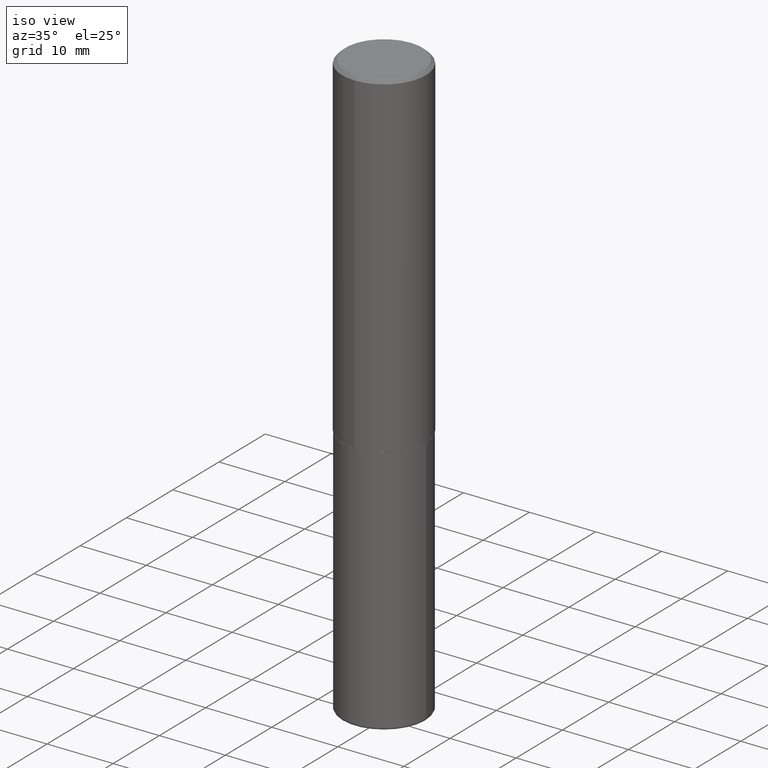
[diagram: clean part render]
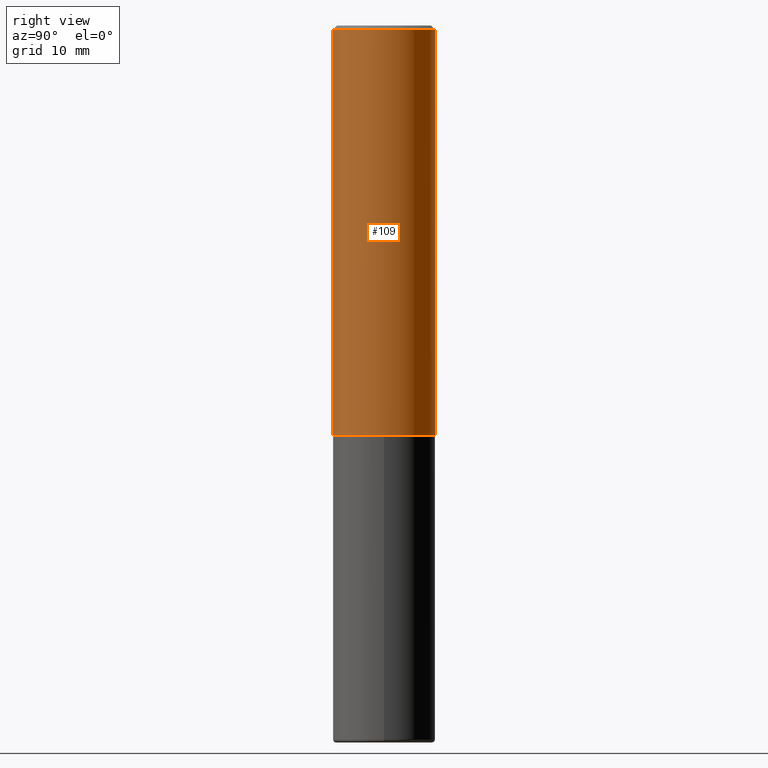
[diagram: tour spotlight — one face highlighted and labeled with its STEP entity id]
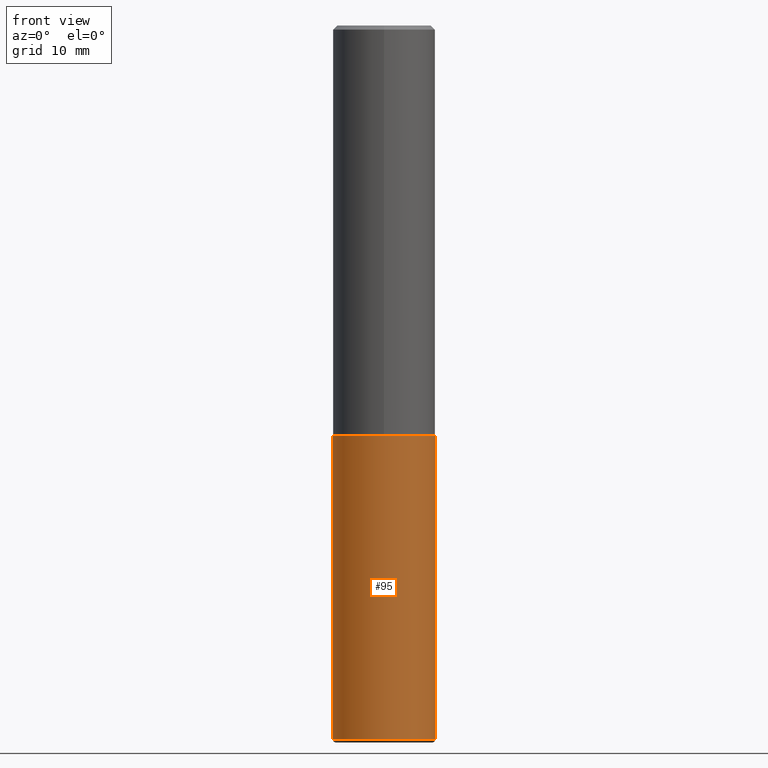
[diagram: tour spotlight — one face highlighted and labeled with its STEP entity id]
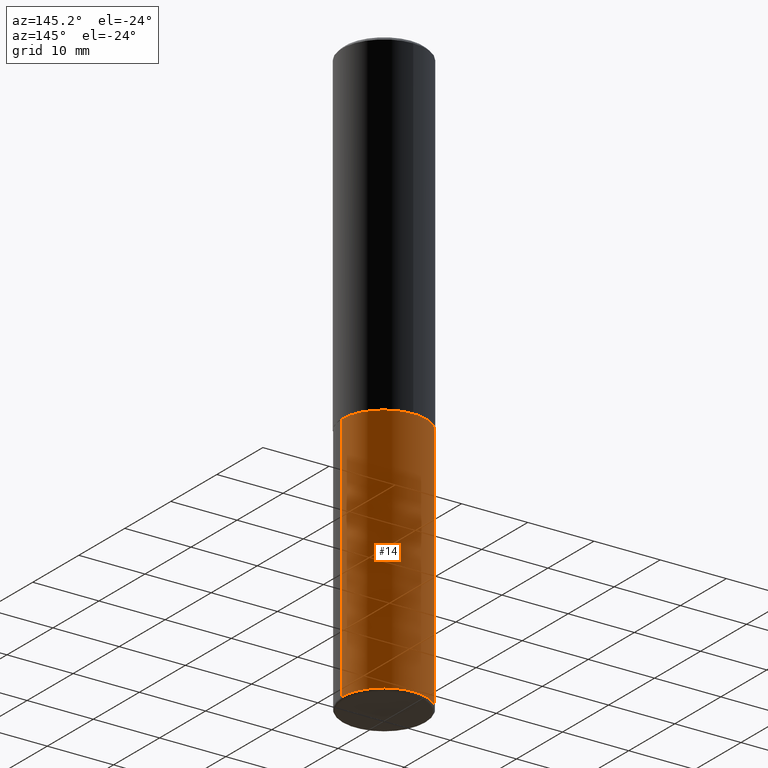
[diagram: tour spotlight — one face highlighted and labeled with its STEP entity id]
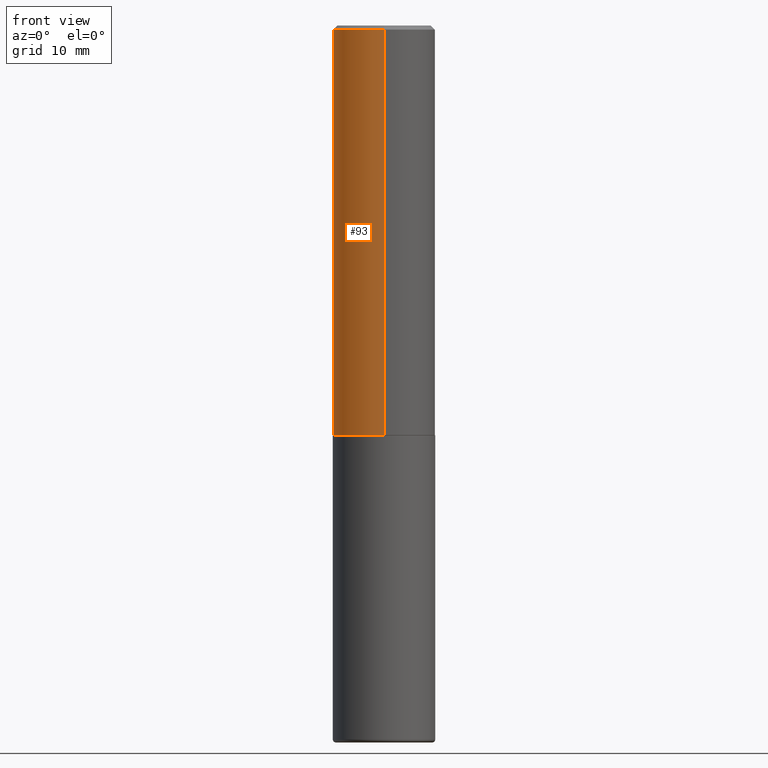
[diagram: tour spotlight — one face highlighted and labeled with its STEP entity id]
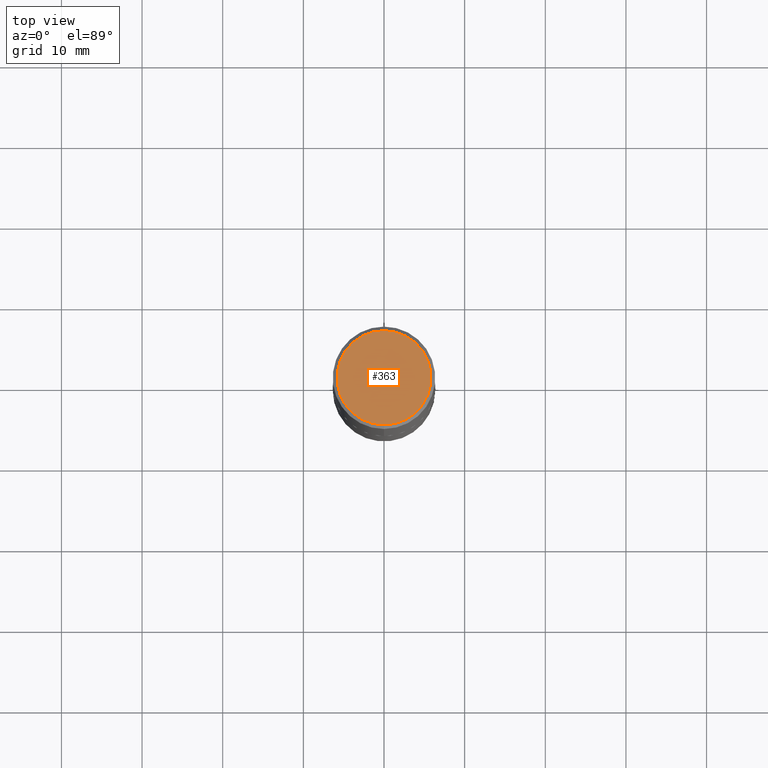
[diagram: tour spotlight — one face highlighted and labeled with its STEP entity id]
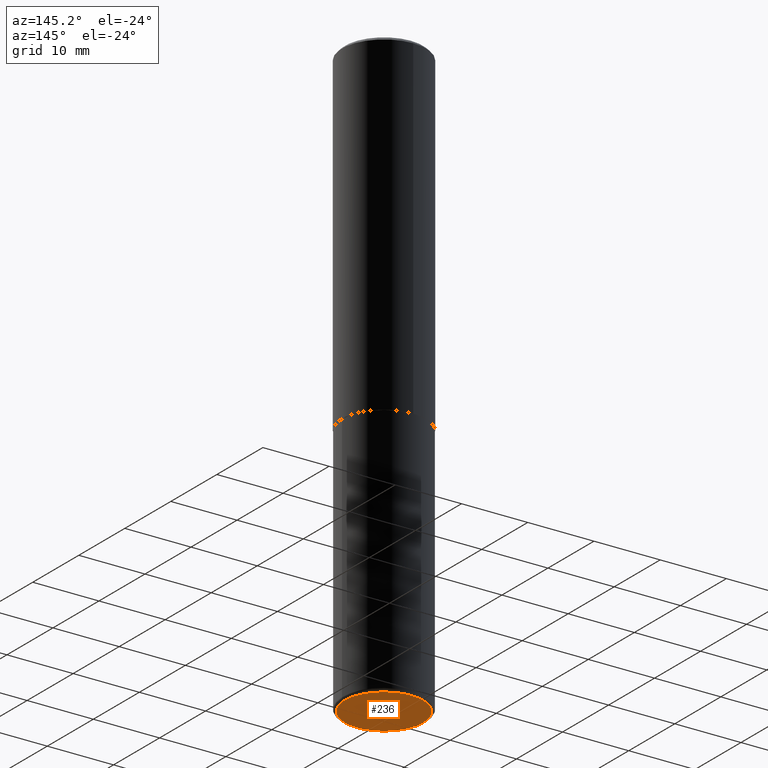
[diagram: tour spotlight — one face highlighted and labeled with its STEP entity id]
A machine part: a face-by-face anatomy tour. The part has 14 B-rep faces; the first image is the clean iso view, then the 6 largest visible faces are spotlighted one at a time (largest first), each with its STEP entity span.

Face 1 — right view, entity #109. In plain terms, the highlighted cylindrical surface (partial cylindrical patch) has radius 6.35 mm, axis along (-0, 0, 1).
Definition (entity closure, byte-faithful):
#6 = DIRECTION ( 'NONE',  ( -6.982962677686266711E-15, -1.000000000000000000, 3.491097007558327996E-15 ) ) ;
#9 = LINE ( 'NONE', #385, #309 ) ;
#11 = VECTOR ( 'NONE', #202, 39.37007874015748143 ) ;
#28 = EDGE_LOOP ( 'NONE', ( #120, #82, #318, #346 ) ) ;
#39 = FACE_OUTER_BOUND ( 'NONE', #28, .T. ) ;
#55 = AXIS2_PLACEMENT_3D ( 'NONE', #259, #165, #6 ) ;
#62 = CARTESIAN_POINT ( 'NONE',  ( 4.889028629390535480E-29, -6.978702918109095527E-15, -1.998999999999999666 ) ) ;
#76 = EDGE_CURVE ( 'NONE', #85, #342, #9, .T. ) ;
#77 = CIRCLE ( 'NONE', #267, 0.2500000000000002776 ) ;
#82 = ORIENTED_EDGE ( 'NONE', *, *, #76, .T. ) ;
#85 = VERTEX_POINT ( 'NONE', #383 ) ;
#98 = LINE ( 'NONE', #226, #11 ) ;
#109 = ADVANCED_FACE ( 'NONE', ( #39 ), #235, .T. ) ;
#117 = CARTESIAN_POINT ( 'NONE',  ( 4.891474366573836672E-31, -6.982194015116674235E-17, -0.02000000000000005593 ) ) ;
#120 = ORIENTED_EDGE ( 'NONE', *, *, #362, .T. ) ;
#125 = EDGE_CURVE ( 'NONE', #187, #184, #98, .T. ) ;
#143 = DIRECTION ( 'NONE',  ( -2.445737183286911680E-29, 3.491097007558327602E-15, 1.000000000000000000 ) ) ;
#147 = EDGE_CURVE ( 'NONE', #184, #342, #390, .T. ) ;
#165 = DIRECTION ( 'NONE',  ( -2.445737183286911680E-29, 3.491097007558327602E-15, 1.000000000000000000 ) ) ;
#184 = VERTEX_POINT ( 'NONE', #279 ) ;
#187 = VERTEX_POINT ( 'NONE', #217 ) ;
#196 = DIRECTION ( 'NONE',  ( -2.445737183286911680E-29, 3.491097007558327602E-15, 1.000000000000000000 ) ) ;
#202 = DIRECTION ( 'NONE',  ( -2.445737183286911680E-29, 3.491097007558327602E-15, 1.000000000000000000 ) ) ;
#204 = DIRECTION ( 'NONE',  ( -6.982962677686265922E-15, -1.000000000000000000, 3.278217592397112312E-15 ) ) ;
#207 = AXIS2_PLACEMENT_3D ( 'NONE', #117, #143, #341 ) ;
#217 = CARTESIAN_POINT ( 'NONE',  ( -1.745740669421519543E-15, -0.2500000000000072164, -1.998999999999998778 ) ) ;
#226 = CARTESIAN_POINT ( 'NONE',  ( -1.745740669421567467E-15, -0.2500000000000001110, 8.727742518895823935E-16 ) ) ;
#235 = CYLINDRICAL_SURFACE ( 'NONE', #55, 0.2500000000000001110 ) ;
#259 = CARTESIAN_POINT ( 'NONE',  ( 0.000000000000000000, 0.000000000000000000, 0.000000000000000000 ) ) ;
#267 = AXIS2_PLACEMENT_3D ( 'NONE', #62, #196, #204 ) ;
#279 = CARTESIAN_POINT ( 'NONE',  ( -1.715124499442882299E-15, -0.2500000000000000555, -0.01999999999999918510 ) ) ;
#295 = DIRECTION ( 'NONE',  ( -2.445737183286911680E-29, 3.491097007558327602E-15, 1.000000000000000000 ) ) ;
#309 = VECTOR ( 'NONE', #295, 39.37007874015748143 ) ;
#318 = ORIENTED_EDGE ( 'NONE', *, *, #147, .F. ) ;
#341 = DIRECTION ( 'NONE',  ( -6.982962677686265922E-15, -1.000000000000000000, 3.483106191921935554E-15 ) ) ;
#342 = VERTEX_POINT ( 'NONE', #389 ) ;
#346 = ORIENTED_EDGE ( 'NONE', *, *, #125, .F. ) ;
#362 = EDGE_CURVE ( 'NONE', #187, #85, #77, .T. ) ;
#383 = CARTESIAN_POINT ( 'NONE',  ( 1.776356839400276103E-15, 0.2499999999999933109, -1.999000000000000554 ) ) ;
#385 = CARTESIAN_POINT ( 'NONE',  ( 1.776356839400251254E-15, 0.2500000000000001110, -8.727742518895823935E-16 ) ) ;
#389 = CARTESIAN_POINT ( 'NONE',  ( 1.745740669421566875E-15, 0.2499999999999999167, -0.02000000000000092676 ) ) ;
#390 = CIRCLE ( 'NONE', #207, 0.2500000000000000000 ) ;

Face 2 — front view, entity #95. In plain terms, the highlighted cylindrical surface (partial cylindrical patch) has radius 6.35 mm, axis along (-0, 0, 1).
Definition (entity closure, byte-faithful):
#4 = CYLINDRICAL_SURFACE ( 'NONE', #359, 0.2500000000000000000 ) ;
#33 = FACE_OUTER_BOUND ( 'NONE', #286, .T. ) ;
#34 = EDGE_CURVE ( 'NONE', #376, #250, #302, .T. ) ;
#47 = CIRCLE ( 'NONE', #170, 0.2500000000000000000 ) ;
#49 = EDGE_CURVE ( 'NONE', #247, #376, #47, .T. ) ;
#58 = ORIENTED_EDGE ( 'NONE', *, *, #380, .F. ) ;
#64 = VECTOR ( 'NONE', #260, 39.37007874015748143 ) ;
#79 = CARTESIAN_POINT ( 'NONE',  ( 0.2499999999999999167, -1.391355313528992618E-14, -3.484999999999999432 ) ) ;
#95 = ADVANCED_FACE ( 'NONE', ( #33 ), #4, .T. ) ;
#97 = DIRECTION ( 'NONE',  ( -2.445468806185136597E-29, 3.491481338843145583E-15, 1.000000000000000000 ) ) ;
#106 = CARTESIAN_POINT ( 'NONE',  ( 0.000000000000000000, 0.000000000000000000, 0.000000000000000000 ) ) ;
#124 = CARTESIAN_POINT ( 'NONE',  ( 0.2500000000000000000, -8.728703347107857054E-15, -1.999999999999999778 ) ) ;
#142 = CARTESIAN_POINT ( 'NONE',  ( -0.2500000000000000000, 1.776356839400250465E-15, -1.229733772563726445E-29 ) ) ;
#151 = ORIENTED_EDGE ( 'NONE', *, *, #306, .F. ) ;
#161 = DIRECTION ( 'NONE',  ( -2.445468806185136597E-29, 3.491481338843145583E-15, 1.000000000000000000 ) ) ;
#170 = AXIS2_PLACEMENT_3D ( 'NONE', #388, #293, #228 ) ;
#219 = VERTEX_POINT ( 'NONE', #313 ) ;
#221 = ORIENTED_EDGE ( 'NONE', *, *, #49, .T. ) ;
#222 = CARTESIAN_POINT ( 'NONE',  ( 4.890937612370272633E-29, -6.982962677686290376E-15, -1.999999999999999778 ) ) ;
#228 = DIRECTION ( 'NONE',  ( 1.000000000000000000, -6.982962677686262766E-15, 0.000000000000000000 ) ) ;
#247 = VERTEX_POINT ( 'NONE', #408 ) ;
#250 = VERTEX_POINT ( 'NONE', #124 ) ;
#252 = LINE ( 'NONE', #142, #334 ) ;
#260 = DIRECTION ( 'NONE',  ( -2.445468806185136877E-29, 3.491481338843145188E-15, 1.000000000000000000 ) ) ;
#277 = DIRECTION ( 'NONE',  ( -2.445468806185136877E-29, 3.491481338843145188E-15, 1.000000000000000000 ) ) ;
#280 = ORIENTED_EDGE ( 'NONE', *, *, #34, .T. ) ;
#286 = EDGE_LOOP ( 'NONE', ( #58, #221, #280, #151 ) ) ;
#293 = DIRECTION ( 'NONE',  ( -2.445468806185136597E-29, 3.491481338843145583E-15, 1.000000000000000000 ) ) ;
#302 = LINE ( 'NONE', #324, #64 ) ;
#306 = EDGE_CURVE ( 'NONE', #219, #250, #344, .T. ) ;
#313 = CARTESIAN_POINT ( 'NONE',  ( -0.2500000000000000000, -7.799030732377074474E-15, -1.999999999999999778 ) ) ;
#324 = CARTESIAN_POINT ( 'NONE',  ( 0.2500000000000000000, -1.745740669421566678E-15, 1.219044193948983948E-29 ) ) ;
#334 = VECTOR ( 'NONE', #277, 39.37007874015748143 ) ;
#344 = CIRCLE ( 'NONE', #366, 0.2500000000000000000 ) ;
#351 = DIRECTION ( 'NONE',  ( 1.000000000000000000, -6.982962677686266711E-15, 0.000000000000000000 ) ) ;
#359 = AXIS2_PLACEMENT_3D ( 'NONE', #106, #161, #414 ) ;
#366 = AXIS2_PLACEMENT_3D ( 'NONE', #222, #97, #351 ) ;
#376 = VERTEX_POINT ( 'NONE', #79 ) ;
#380 = EDGE_CURVE ( 'NONE', #247, #219, #252, .T. ) ;
#388 = CARTESIAN_POINT ( 'NONE',  ( 8.522458789555200771E-29, -1.216781246586836108E-14, -3.484999999999999432 ) ) ;
#408 = CARTESIAN_POINT ( 'NONE',  ( -0.2499999999999999167, -1.039145562646811219E-14, -3.484999999999999432 ) ) ;
#414 = DIRECTION ( 'NONE',  ( 1.000000000000000000, -6.982962677686266711E-15, 4.876176775795935793E-29 ) ) ;

Face 3 — auxiliary view, entity #14. In plain terms, the highlighted cylindrical surface (partial cylindrical patch) has radius 6.35 mm, axis along (-0, 0, 1).
Definition (entity closure, byte-faithful):
#5 = DIRECTION ( 'NONE',  ( 1.000000000000000000, -6.982962677686262766E-15, 0.000000000000000000 ) ) ;
#14 = ADVANCED_FACE ( 'NONE', ( #299 ), #231, .T. ) ;
#34 = EDGE_CURVE ( 'NONE', #376, #250, #302, .T. ) ;
#37 = CARTESIAN_POINT ( 'NONE',  ( 8.522458789555200771E-29, -1.216781246586836108E-14, -3.484999999999999432 ) ) ;
#48 = AXIS2_PLACEMENT_3D ( 'NONE', #37, #298, #5 ) ;
#52 = ORIENTED_EDGE ( 'NONE', *, *, #380, .T. ) ;
#64 = VECTOR ( 'NONE', #260, 39.37007874015748143 ) ;
#66 = CARTESIAN_POINT ( 'NONE',  ( 4.890937612370272633E-29, -6.982962677686290376E-15, -1.999999999999999778 ) ) ;
#79 = CARTESIAN_POINT ( 'NONE',  ( 0.2499999999999999167, -1.391355313528992618E-14, -3.484999999999999432 ) ) ;
#115 = EDGE_LOOP ( 'NONE', ( #210, #52, #263, #314 ) ) ;
#124 = CARTESIAN_POINT ( 'NONE',  ( 0.2500000000000000000, -8.728703347107857054E-15, -1.999999999999999778 ) ) ;
#131 = DIRECTION ( 'NONE',  ( -2.445468806185136597E-29, 3.491481338843145583E-15, 1.000000000000000000 ) ) ;
#135 = DIRECTION ( 'NONE',  ( 1.000000000000000000, -6.982962677686266711E-15, 4.876176775795935793E-29 ) ) ;
#142 = CARTESIAN_POINT ( 'NONE',  ( -0.2500000000000000000, 1.776356839400250465E-15, -1.229733772563726445E-29 ) ) ;
#163 = AXIS2_PLACEMENT_3D ( 'NONE', #193, #131, #135 ) ;
#191 = DIRECTION ( 'NONE',  ( -2.445468806185136597E-29, 3.491481338843145583E-15, 1.000000000000000000 ) ) ;
#193 = CARTESIAN_POINT ( 'NONE',  ( 0.000000000000000000, 0.000000000000000000, 0.000000000000000000 ) ) ;
#210 = ORIENTED_EDGE ( 'NONE', *, *, #330, .T. ) ;
#219 = VERTEX_POINT ( 'NONE', #313 ) ;
#231 = CYLINDRICAL_SURFACE ( 'NONE', #163, 0.2500000000000000000 ) ;
#238 = AXIS2_PLACEMENT_3D ( 'NONE', #66, #191, #257 ) ;
#247 = VERTEX_POINT ( 'NONE', #408 ) ;
#250 = VERTEX_POINT ( 'NONE', #124 ) ;
#252 = LINE ( 'NONE', #142, #334 ) ;
#257 = DIRECTION ( 'NONE',  ( 1.000000000000000000, -6.982962677686266711E-15, 0.000000000000000000 ) ) ;
#260 = DIRECTION ( 'NONE',  ( -2.445468806185136877E-29, 3.491481338843145188E-15, 1.000000000000000000 ) ) ;
#263 = ORIENTED_EDGE ( 'NONE', *, *, #349, .F. ) ;
#277 = DIRECTION ( 'NONE',  ( -2.445468806185136877E-29, 3.491481338843145188E-15, 1.000000000000000000 ) ) ;
#278 = CIRCLE ( 'NONE', #48, 0.2500000000000000000 ) ;
#289 = CIRCLE ( 'NONE', #238, 0.2500000000000000000 ) ;
#298 = DIRECTION ( 'NONE',  ( -2.445468806185136597E-29, 3.491481338843145583E-15, 1.000000000000000000 ) ) ;
#299 = FACE_OUTER_BOUND ( 'NONE', #115, .T. ) ;
#302 = LINE ( 'NONE', #324, #64 ) ;
#313 = CARTESIAN_POINT ( 'NONE',  ( -0.2500000000000000000, -7.799030732377074474E-15, -1.999999999999999778 ) ) ;
#314 = ORIENTED_EDGE ( 'NONE', *, *, #34, .F. ) ;
#324 = CARTESIAN_POINT ( 'NONE',  ( 0.2500000000000000000, -1.745740669421566678E-15, 1.219044193948983948E-29 ) ) ;
#330 = EDGE_CURVE ( 'NONE', #376, #247, #278, .T. ) ;
#334 = VECTOR ( 'NONE', #277, 39.37007874015748143 ) ;
#349 = EDGE_CURVE ( 'NONE', #250, #219, #289, .T. ) ;
#376 = VERTEX_POINT ( 'NONE', #79 ) ;
#380 = EDGE_CURVE ( 'NONE', #247, #219, #252, .T. ) ;
#408 = CARTESIAN_POINT ( 'NONE',  ( -0.2499999999999999167, -1.039145562646811219E-14, -3.484999999999999432 ) ) ;

Face 4 — front view, entity #93. In plain terms, the highlighted cylindrical surface (partial cylindrical patch) has radius 6.35 mm, axis along (-0, 0, 1).
Definition (entity closure, byte-faithful):
#9 = LINE ( 'NONE', #385, #309 ) ;
#11 = VECTOR ( 'NONE', #202, 39.37007874015748143 ) ;
#16 = DIRECTION ( 'NONE',  ( -6.982962677686265922E-15, -1.000000000000000000, 3.483106191921935554E-15 ) ) ;
#17 = ORIENTED_EDGE ( 'NONE', *, *, #108, .T. ) ;
#22 = ORIENTED_EDGE ( 'NONE', *, *, #139, .F. ) ;
#36 = DIRECTION ( 'NONE',  ( -2.445737183286911680E-29, 3.491097007558327602E-15, 1.000000000000000000 ) ) ;
#41 = CARTESIAN_POINT ( 'NONE',  ( 4.891474366573836672E-31, -6.982194015116674235E-17, -0.02000000000000005593 ) ) ;
#69 = CARTESIAN_POINT ( 'NONE',  ( 0.000000000000000000, 0.000000000000000000, 0.000000000000000000 ) ) ;
#76 = EDGE_CURVE ( 'NONE', #85, #342, #9, .T. ) ;
#85 = VERTEX_POINT ( 'NONE', #383 ) ;
#93 = ADVANCED_FACE ( 'NONE', ( #167 ), #102, .T. ) ;
#98 = LINE ( 'NONE', #226, #11 ) ;
#102 = CYLINDRICAL_SURFACE ( 'NONE', #156, 0.2500000000000001110 ) ;
#108 = EDGE_CURVE ( 'NONE', #85, #187, #368, .T. ) ;
#125 = EDGE_CURVE ( 'NONE', #187, #184, #98, .T. ) ;
#137 = AXIS2_PLACEMENT_3D ( 'NONE', #41, #179, #16 ) ;
#139 = EDGE_CURVE ( 'NONE', #342, #184, #394, .T. ) ;
#145 = AXIS2_PLACEMENT_3D ( 'NONE', #261, #328, #392 ) ;
#156 = AXIS2_PLACEMENT_3D ( 'NONE', #69, #36, #162 ) ;
#162 = DIRECTION ( 'NONE',  ( -6.982962677686266711E-15, -1.000000000000000000, 3.491097007558327996E-15 ) ) ;
#167 = FACE_OUTER_BOUND ( 'NONE', #244, .T. ) ;
#179 = DIRECTION ( 'NONE',  ( -2.445737183286911680E-29, 3.491097007558327602E-15, 1.000000000000000000 ) ) ;
#184 = VERTEX_POINT ( 'NONE', #279 ) ;
#187 = VERTEX_POINT ( 'NONE', #217 ) ;
#202 = DIRECTION ( 'NONE',  ( -2.445737183286911680E-29, 3.491097007558327602E-15, 1.000000000000000000 ) ) ;
#217 = CARTESIAN_POINT ( 'NONE',  ( -1.745740669421519543E-15, -0.2500000000000072164, -1.998999999999998778 ) ) ;
#226 = CARTESIAN_POINT ( 'NONE',  ( -1.745740669421567467E-15, -0.2500000000000001110, 8.727742518895823935E-16 ) ) ;
#244 = EDGE_LOOP ( 'NONE', ( #258, #17, #403, #22 ) ) ;
#258 = ORIENTED_EDGE ( 'NONE', *, *, #76, .F. ) ;
#261 = CARTESIAN_POINT ( 'NONE',  ( 4.889028629390535480E-29, -6.978702918109095527E-15, -1.998999999999999666 ) ) ;
#279 = CARTESIAN_POINT ( 'NONE',  ( -1.715124499442882299E-15, -0.2500000000000000555, -0.01999999999999918510 ) ) ;
#295 = DIRECTION ( 'NONE',  ( -2.445737183286911680E-29, 3.491097007558327602E-15, 1.000000000000000000 ) ) ;
#309 = VECTOR ( 'NONE', #295, 39.37007874015748143 ) ;
#328 = DIRECTION ( 'NONE',  ( -2.445737183286911680E-29, 3.491097007558327602E-15, 1.000000000000000000 ) ) ;
#342 = VERTEX_POINT ( 'NONE', #389 ) ;
#368 = CIRCLE ( 'NONE', #145, 0.2500000000000002776 ) ;
#383 = CARTESIAN_POINT ( 'NONE',  ( 1.776356839400276103E-15, 0.2499999999999933109, -1.999000000000000554 ) ) ;
#385 = CARTESIAN_POINT ( 'NONE',  ( 1.776356839400251254E-15, 0.2500000000000001110, -8.727742518895823935E-16 ) ) ;
#389 = CARTESIAN_POINT ( 'NONE',  ( 1.745740669421566875E-15, 0.2499999999999999167, -0.02000000000000092676 ) ) ;
#392 = DIRECTION ( 'NONE',  ( -6.982962677686265922E-15, -1.000000000000000000, 3.278217592397112312E-15 ) ) ;
#394 = CIRCLE ( 'NONE', #137, 0.2500000000000000000 ) ;
#403 = ORIENTED_EDGE ( 'NONE', *, *, #125, .T. ) ;

Face 5 — top view, entity #363. In plain terms, the highlighted planar face has unit normal (0, -0, -1).
Definition (entity closure, byte-faithful):
#25 = CARTESIAN_POINT ( 'NONE',  ( 1.675911042644703774E-15, 0.2299999999999999822, -8.286517828745257562E-16 ) ) ;
#38 = CIRCLE ( 'NONE', #74, 0.2299999999999999822 ) ;
#42 = PLANE ( 'NONE',  #56 ) ;
#54 = VERTEX_POINT ( 'NONE', #418 ) ;
#56 = AXIS2_PLACEMENT_3D ( 'NONE', #174, #364, #75 ) ;
#68 = DIRECTION ( 'NONE',  ( -6.982962677686265922E-15, -1.000000000000000000, 3.491097007558327207E-15 ) ) ;
#73 = DIRECTION ( 'NONE',  ( -2.445737183286911680E-29, 3.491097007558327602E-15, 1.000000000000000000 ) ) ;
#74 = AXIS2_PLACEMENT_3D ( 'NONE', #185, #284, #367 ) ;
#75 = DIRECTION ( 'NONE',  ( 6.982962677686265922E-15, 1.000000000000000000, -3.491097007558327602E-15 ) ) ;
#141 = EDGE_LOOP ( 'NONE', ( #352, #409 ) ) ;
#158 = AXIS2_PLACEMENT_3D ( 'NONE', #209, #73, #68 ) ;
#174 = CARTESIAN_POINT ( 'NONE',  ( 1.606081415867841067E-15, 0.2299999999999999822, -8.158020473064706174E-16 ) ) ;
#183 = CIRCLE ( 'NONE', #158, 0.2299999999999999822 ) ;
#185 = CARTESIAN_POINT ( 'NONE',  ( 6.285415214839433991E-46, -8.971934677910720830E-32, -2.569947113611056727E-17 ) ) ;
#209 = CARTESIAN_POINT ( 'NONE',  ( 6.285415214839433991E-46, -8.971934677910720830E-32, -2.569947113611056727E-17 ) ) ;
#223 = VERTEX_POINT ( 'NONE', #25 ) ;
#284 = DIRECTION ( 'NONE',  ( -2.445737183286911680E-29, 3.491097007558327602E-15, 1.000000000000000000 ) ) ;
#291 = EDGE_CURVE ( 'NONE', #223, #54, #183, .T. ) ;
#331 = FACE_OUTER_BOUND ( 'NONE', #141, .T. ) ;
#352 = ORIENTED_EDGE ( 'NONE', *, *, #291, .T. ) ;
#363 = ADVANCED_FACE ( 'NONE', ( #331 ), #42, .F. ) ;
#364 = DIRECTION ( 'NONE',  ( 2.445737183286911400E-29, -3.491097007558327602E-15, -1.000000000000000000 ) ) ;
#367 = DIRECTION ( 'NONE',  ( -6.982962677686265922E-15, -1.000000000000000000, 3.491097007558327207E-15 ) ) ;
#409 = ORIENTED_EDGE ( 'NONE', *, *, #417, .T. ) ;
#417 = EDGE_CURVE ( 'NONE', #54, #223, #38, .T. ) ;
#418 = CARTESIAN_POINT ( 'NONE',  ( -1.646519519465166968E-15, -0.2299999999999999822, 7.772528406023046093E-16 ) ) ;

Face 6 — auxiliary view, entity #236. In plain terms, the highlighted planar face has unit normal (0, -0, -1).
Definition (entity closure, byte-faithful):
#7 = VERTEX_POINT ( 'NONE', #361 ) ;
#13 = ORIENTED_EDGE ( 'NONE', *, *, #240, .F. ) ;
#57 = PLANE ( 'NONE',  #377 ) ;
#81 = DIRECTION ( 'NONE',  ( -1.000000000000000000, 6.982962677686265922E-15, -4.876176775795935793E-29 ) ) ;
#92 = VERTEX_POINT ( 'NONE', #357 ) ;
#119 = EDGE_LOOP ( 'NONE', ( #13, #206 ) ) ;
#152 = DIRECTION ( 'NONE',  ( -2.445468806185136597E-29, 3.491481338843145583E-15, 1.000000000000000000 ) ) ;
#155 = FACE_OUTER_BOUND ( 'NONE', #119, .T. ) ;
#168 = EDGE_CURVE ( 'NONE', #7, #92, #192, .T. ) ;
#182 = DIRECTION ( 'NONE',  ( -2.445468806185136597E-29, 3.491481338843145583E-15, 1.000000000000000000 ) ) ;
#186 = DIRECTION ( 'NONE',  ( 2.438088387897960049E-29, -3.491481338843145188E-15, -1.000000000000000000 ) ) ;
#192 = CIRCLE ( 'NONE', #241, 0.2349999999999999867 ) ;
#206 = ORIENTED_EDGE ( 'NONE', *, *, #168, .F. ) ;
#218 = AXIS2_PLACEMENT_3D ( 'NONE', #317, #152, #285 ) ;
#236 = ADVANCED_FACE ( 'NONE', ( #155 ), #57, .T. ) ;
#240 = EDGE_CURVE ( 'NONE', #92, #7, #395, .T. ) ;
#241 = AXIS2_PLACEMENT_3D ( 'NONE', #319, #182, #375 ) ;
#285 = DIRECTION ( 'NONE',  ( 1.000000000000000000, -6.982962677686271444E-15, 0.000000000000000000 ) ) ;
#317 = CARTESIAN_POINT ( 'NONE',  ( 8.559140821647976968E-29, -1.222018468595100619E-14, -3.499999999999999112 ) ) ;
#319 = CARTESIAN_POINT ( 'NONE',  ( 8.559140821647976968E-29, -1.222018468595100619E-14, -3.499999999999999112 ) ) ;
#357 = CARTESIAN_POINT ( 'NONE',  ( 0.2349999999999999867, -1.386118091520728107E-14, -3.499999999999999112 ) ) ;
#361 = CARTESIAN_POINT ( 'NONE',  ( -0.2349999999999999867, -1.047093244169144191E-14, -3.499999999999999112 ) ) ;
#375 = DIRECTION ( 'NONE',  ( 1.000000000000000000, -6.982962677686271444E-15, 0.000000000000000000 ) ) ;
#377 = AXIS2_PLACEMENT_3D ( 'NONE', #402, #186, #81 ) ;
#395 = CIRCLE ( 'NONE', #218, 0.2349999999999999867 ) ;
#402 = CARTESIAN_POINT ( 'NONE',  ( 1.424147052658787775E-28, -4.082765130355326584E-15, -3.499999999999999112 ) ) ;